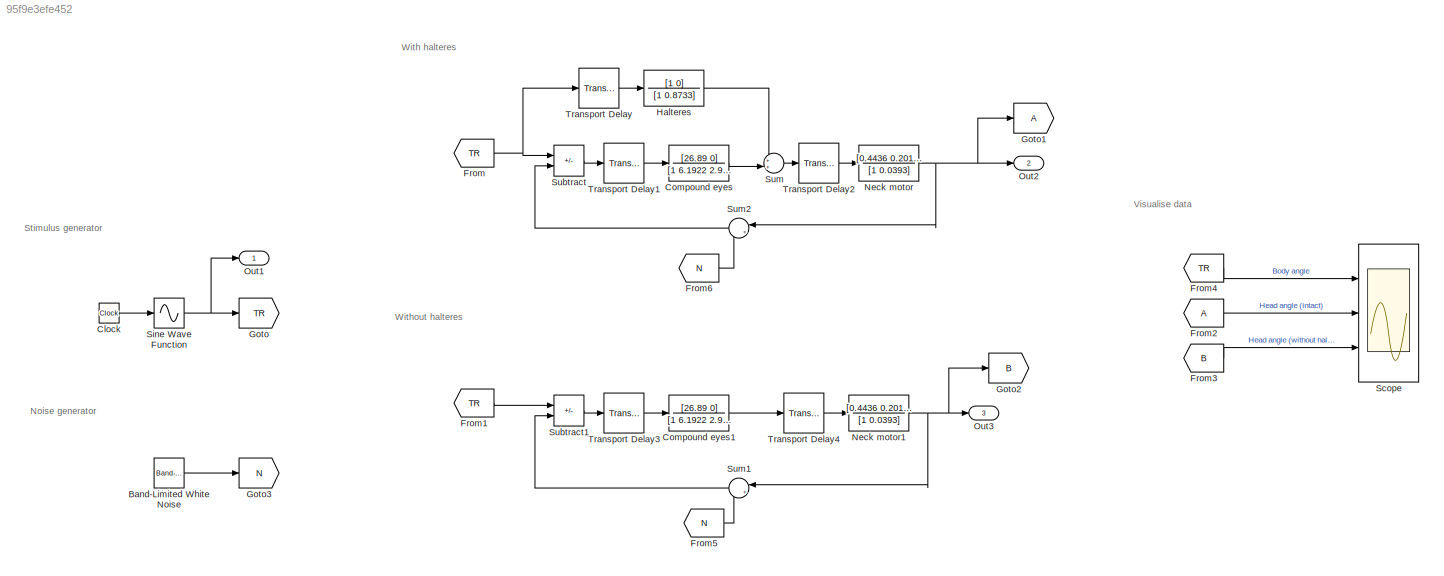
MODEL slx_95f9e3efe452
KIND model
CONFIG AbsTol = auto
CONFIG EnableMultiTasking = off
CONFIG FixedStep = auto
CONFIG MaxStep = 1e-4
CONFIG MinStep = auto
CONFIG RelTol = 1e-6
CONFIG SampleTimeConstraint = Unconstrained
CONFIG SolverName = ode45
CONFIG StartTime = 0.0
CONFIG StopTime = t_run
BLOCK [Reference] Band-Limited White Noise  REF=simulink/Sources/Band-Limited
White Noise
  Ports = [0, 1]
  SourceBlock = simulink/Sources/Band-Limited\nWhite Noise
  SourceProductBaseCode = SL
  SourceType = Band-Limited White Noise.
BLOCK [Clock] Clock
  Decimation = 1000
BLOCK [TransferFcn] Compound eyes
  Denominator = [1 6.1922 2.9191]
  Numerator = [26.89 0]
BLOCK [TransferFcn] Compound eyes1
  Denominator = [1 6.1922 2.9191]
  Numerator = [26.89 0]
BLOCK [From] From
  GotoTag = TR
BLOCK [From] From1
  GotoTag = TR
BLOCK [From] From2
BLOCK [From] From3
  GotoTag = B
BLOCK [From] From4
  GotoTag = TR
BLOCK [From] From5
  GotoTag = N
BLOCK [From] From6
  GotoTag = N
BLOCK [Goto] Goto
  GotoTag = TR
BLOCK [Goto] Goto1
BLOCK [Goto] Goto2
  GotoTag = B
BLOCK [Goto] Goto3
  GotoTag = N
BLOCK [TransferFcn] Halteres
  Denominator = [1 0.8733]
  Numerator = [1 0]
BLOCK [TransferFcn] Neck motor
  Denominator = [1 0.0393]
  Numerator = [0.4436 0.2017]
BLOCK [TransferFcn] Neck motor1
  Denominator = [1 0.0393]
  Numerator = [0.4436 0.2017]
BLOCK [Outport] Out1
  SignalName = TR
BLOCK [Outport] Out2
  Port = 2
  SignalName = HR_intact
BLOCK [Outport] Out3
  Port = 3
  SignalName = HR_without_halteres
BLOCK [Scope] Scope
  Floating = off
  NumInputPorts = 3
  Ports = [3]
  ScopeSpecificationString = Simulink.scopes.TimeScopeBlockCfg('CurrentConfiguration', extmgr.ConfigurationSet(extmgr.Configuration('Core','General UI',true),extmgr.Configuration('Core','Source UI',true),extmgr.Configuration('Sources','WiredSimulink',true),extmgr.Configuration('Visuals','Time Domain',true,'SerializedDisplays',{struct('MinYLimReal','-37.5','MaxYLimReal','37.5','YLabelReal','','MinYLimMag','0.00000','MaxYLimMag...<+1443ch>
BLOCK [Sin] Sine Wave Function
  Amplitude = 30
  Frequency = frequency*pi*2
  Ports = [1, 1]
  SampleTime = 0
  TimeSource = Use external signal
BLOCK [Sum] Subtract
  IconShape = rectangular
  Inputs = +-
  Ports = [2, 1]
BLOCK [Sum] Subtract1
  IconShape = rectangular
  Inputs = +-
  Ports = [2, 1]
BLOCK [Sum] Sum
  Inputs = ++|
  Ports = [2, 1]
BLOCK [Sum] Sum1
  Inputs = |++
  NameLocation = top
  Ports = [2, 1]
BLOCK [Sum] Sum2
  Inputs = |++
  NameLocation = top
  Ports = [2, 1]
BLOCK [TransportDelay] Transport Delay
  BufferSize = 14000
  DelayTime = 0.003
  Ports = [1, 1]
BLOCK [TransportDelay] Transport Delay1
  BufferSize = 14000
  DelayTime = 0.009
  Ports = [1, 1]
BLOCK [TransportDelay] Transport Delay2
  BufferSize = 14000
  DelayTime = 0.0021
  Ports = [1, 1]
BLOCK [TransportDelay] Transport Delay3
  BufferSize = 14000
  DelayTime = 0.009
  Ports = [1, 1]
BLOCK [TransportDelay] Transport Delay4
  BufferSize = 14000
  DelayTime = 0.0021
  Ports = [1, 1]
ANNOTATION (root): Noise generator
ANNOTATION (root): Stimulus generator
ANNOTATION (root): Visualise data
ANNOTATION (root): With halteres
ANNOTATION (root): Without halteres
LINE Band-Limited White Noise:1 -> Goto3:1
LINE Clock:1 -> Sine Wave Function:1
LINE Compound eyes1:1 -> Transport Delay4:1
LINE Compound eyes:1 -> Sum:2
LINE From1:1 -> Subtract1:1
LINE From2:1 -> Scope:2
LINE From3:1 -> Scope:3
LINE From4:1 -> Scope:1
LINE From5:1 -> Sum1:2
LINE From6:1 -> Sum2:2
NET From:1 -> Subtract:1, Transport Delay:1
LINE Halteres:1 -> Sum:1
NET Neck motor1:1 -> Goto2:1, Out3:1, Sum1:1
NET Neck motor:1 -> Goto1:1, Out2:1, Sum2:1
NET Sine Wave Function:1 -> Goto:1, Out1:1
LINE Subtract1:1 -> Transport Delay3:1
LINE Subtract:1 -> Transport Delay1:1
LINE Sum1:1 -> Subtract1:2
LINE Sum2:1 -> Subtract:2
LINE Sum:1 -> Transport Delay2:1
LINE Transport Delay1:1 -> Compound eyes:1
LINE Transport Delay2:1 -> Neck motor:1
LINE Transport Delay3:1 -> Compound eyes1:1
LINE Transport Delay4:1 -> Neck motor1:1
LINE Transport Delay:1 -> Halteres:1
note: NET lines group one-source signal fan-out (src -> all destinations, sorted); 1:1 wires keep LINE
